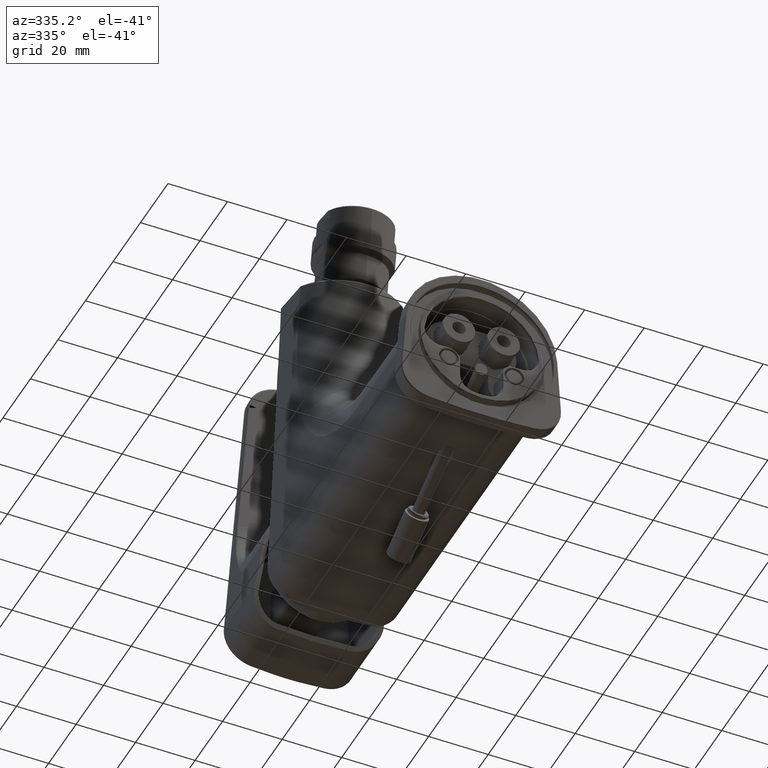
[diagram: clean part render]
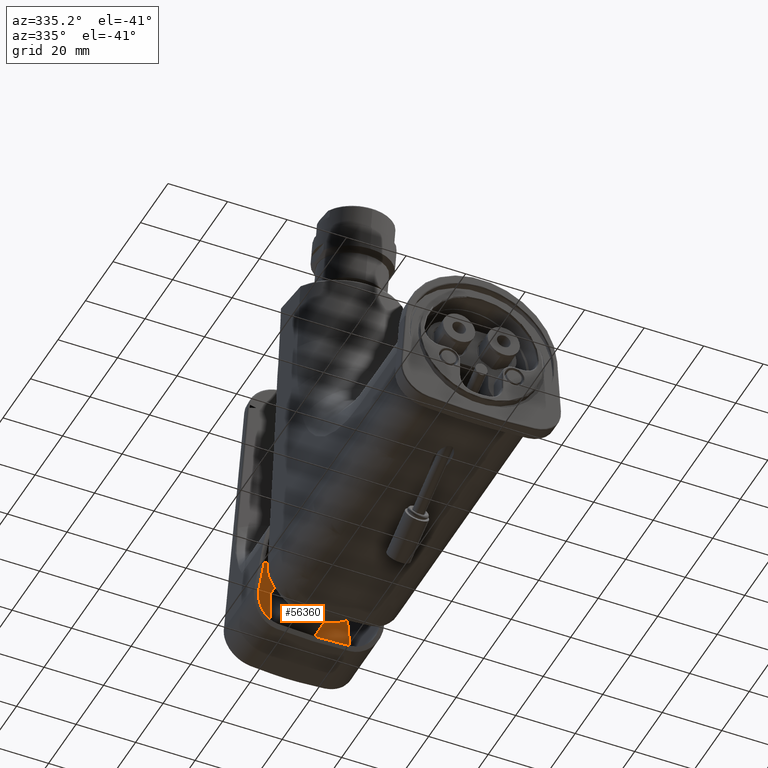
[diagram: same view with one face highlighted and labeled with its STEP entity id]
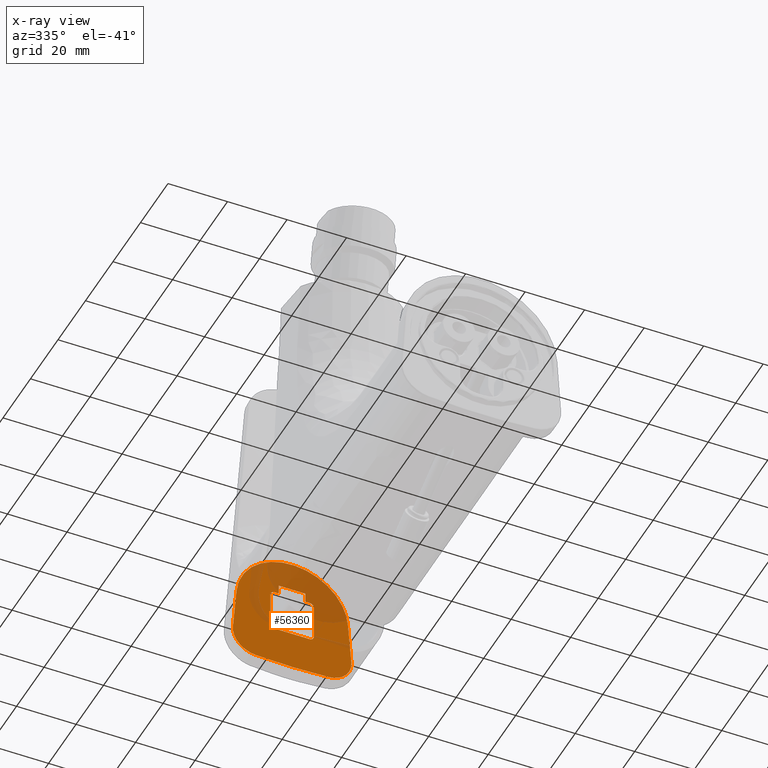
[diagram: x-ray of the same camera — body ghosted, the highlighted face saturated]
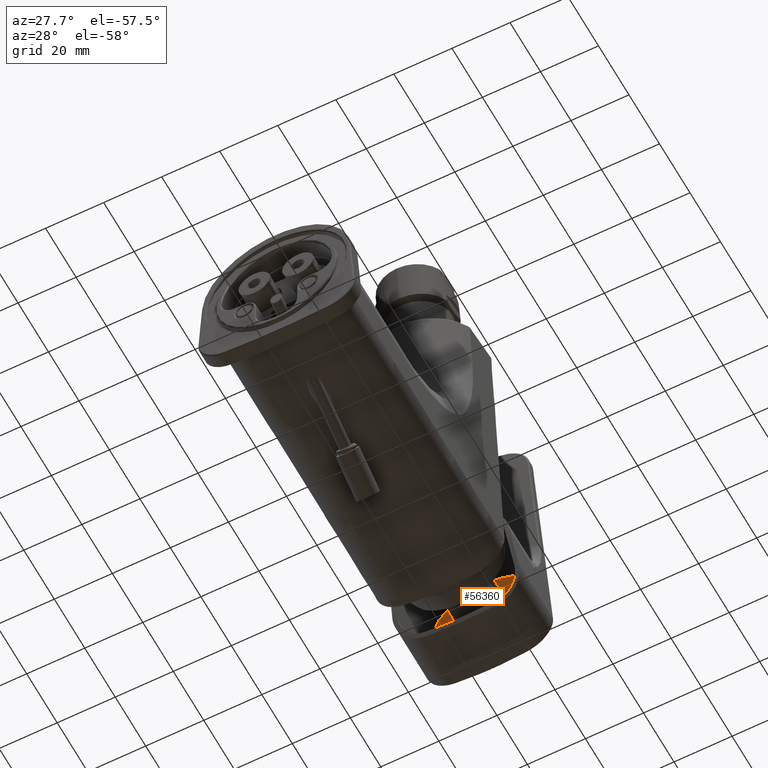
[diagram: same view with one face highlighted and labeled with its STEP entity id]
A machine part, auxiliary view. The second image highlights one B-rep face of the part: STEP entity #56360.
The next image is the same camera in x-ray: the body ghosted, the highlighted face saturated — about 33% of this face is hidden behind the body in this view.
A second angle (auxiliary view) of the same face is appended — the face is thin or edge-on in the first view.
In plain terms, the highlighted face is a freeform B-spline surface patch.
Its self-contained STEP definition (entity closure, byte-faithful):
#11997=CARTESIAN_POINT('',(7.317759736006E0,1.327044430836E2,
-5.817988193271E0));
#11998=CARTESIAN_POINT('',(7.317759736006E0,1.327044430836E2,
-5.855251896638E0));
#11999=CARTESIAN_POINT('',(7.314983783527E0,1.327044430836E2,
-5.929845424255E0));
#12000=CARTESIAN_POINT('',(7.302441616271E0,1.327044430836E2,
-6.041444646624E0));
#12001=CARTESIAN_POINT('',(7.281592593605E0,1.327044430836E2,
-6.151719204480E0));
#12002=CARTESIAN_POINT('',(7.252710595179E0,1.327044430836E2,
-6.259694264647E0));
#12003=CARTESIAN_POINT('',(7.215700362064E0,1.327044430836E2,
-6.365700915223E0));
#12004=CARTESIAN_POINT('',(7.170806833168E0,1.327044430836E2,
-6.468733487140E0));
#12005=CARTESIAN_POINT('',(7.118502879743E0,1.327044430836E2,
-6.567816901581E0));
#12006=CARTESIAN_POINT('',(7.058973571326E0,1.327044430836E2,
-6.662719740014E0));
#12007=CARTESIAN_POINT('',(6.992271951592E0,1.327044430836E2,
-6.753245066016E0));
#12008=CARTESIAN_POINT('',(6.919010493951E0,1.327044430836E2,
-6.838462094267E0));
#12009=CARTESIAN_POINT('',(6.839918697417E0,1.327044430836E2,
-6.917659481042E0));
#12010=CARTESIAN_POINT('',(6.754761987631E0,1.327044430836E2,
-6.991064580032E0));
#12011=CARTESIAN_POINT('',(6.664241713438E0,1.327044430836E2,
-7.057940072532E0));
#12012=CARTESIAN_POINT('',(6.569286934263E0,1.327044430836E2,
-7.117658741967E0));
#12013=CARTESIAN_POINT('',(6.470114399155E0,1.327044430836E2,
-7.170146818511E0));
#12014=CARTESIAN_POINT('',(6.366939844024E0,1.327044430836E2,
-7.215220158236E0));
#12015=CARTESIAN_POINT('',(6.260747323833E0,1.327044430836E2,
-7.252392247994E0));
#12016=CARTESIAN_POINT('',(6.152550475294E0,1.327044430836E2,
-7.281409464545E0));
#12017=CARTESIAN_POINT('',(6.042020407924E0,1.327044430836E2,
-7.302361919290E0));
#12018=CARTESIAN_POINT('',(5.930140144087E0,1.327044430836E2,
-7.314969000405E0));
#12019=CARTESIAN_POINT('',(5.855351264262E0,1.327044430836E2,
-7.317759736005E0));
#12020=CARTESIAN_POINT('',(5.817988193272E0,1.327044430836E2,
-7.317759736005E0));
#12022=CARTESIAN_POINT('',(1.228485097794E1,1.327044430872E2,
-2.033496898433E1));
#12023=CARTESIAN_POINT('',(1.111613795788E1,1.327044430872E2,
-2.040810637435E1));
#12024=CARTESIAN_POINT('',(8.777906817098E0,1.327044430819E2,
-2.053348317039E1));
#12025=CARTESIAN_POINT('',(5.267529474050E0,1.327044430840E2,
-2.065890528162E1));
#12026=CARTESIAN_POINT('',(1.756208102964E0,1.327044430835E2,
-2.072160378772E1));
#12027=CARTESIAN_POINT('',(-1.756208507650E0,1.327044430835E2,
-2.072160378385E1));
#12028=CARTESIAN_POINT('',(-5.267529885292E0,1.327044430839E2,
-2.065890527088E1));
#12029=CARTESIAN_POINT('',(-8.777907257435E0,1.327044430822E2,
-2.053348315078E1));
#12030=CARTESIAN_POINT('',(-1.111613836329E1,1.327044430865E2,
-2.040810635145E1));
#12031=CARTESIAN_POINT('',(-1.228485141687E1,1.327044430865E2,
-2.033496895689E1));
#12033=CARTESIAN_POINT('',(-1.228485141687E1,1.327044430865E2,
-2.033496895689E1));
#12034=CARTESIAN_POINT('',(-1.241996748617E1,1.327044430865E2,
-2.032651347054E1));
#12035=CARTESIAN_POINT('',(-1.268944421023E1,1.327044430822E2,
-2.030288757061E1));
#12036=CARTESIAN_POINT('',(-1.309206374391E1,1.327044430839E2,
-2.024728984117E1));
#12037=CARTESIAN_POINT('',(-1.349077295826E1,1.327044430835E2,
-2.017185956238E1));
#12038=CARTESIAN_POINT('',(-1.388531589713E1,1.327044430836E2,
-2.007667750556E1));
#12039=CARTESIAN_POINT('',(-1.427502159472E1,1.327044430836E2,
-1.996184226249E1));
#12040=CARTESIAN_POINT('',(-1.465795873425E1,1.327044430836E2,
-1.982791849156E1));
#12041=CARTESIAN_POINT('',(-1.503394355519E1,1.327044430836E2,
-1.967499368213E1));
#12042=CARTESIAN_POINT('',(-1.540232207685E1,1.327044430836E2,
-1.950340708982E1));
#12043=CARTESIAN_POINT('',(-1.576139248309E1,1.327044430836E2,
-1.931396848716E1));
#12044=CARTESIAN_POINT('',(-1.611111492814E1,1.327044430836E2,
-1.910656469701E1));
#12045=CARTESIAN_POINT('',(-1.645039840052E1,1.327044430836E2,
-1.888163492110E1));
#12046=CARTESIAN_POINT('',(-1.677758253190E1,1.327044430836E2,
-1.864033545094E1));
#12047=CARTESIAN_POINT('',(-1.709275229954E1,1.327044430836E2,
-1.838274971216E1));
#12048=CARTESIAN_POINT('',(-1.739486342213E1,1.327044430836E2,
-1.810971280458E1));
#12049=CARTESIAN_POINT('',(-1.768258059446E1,1.327044430836E2,
-1.782249319394E1));
#12050=CARTESIAN_POINT('',(-1.795593368035E1,1.327044430836E2,
-1.752093031780E1));
#12051=CARTESIAN_POINT('',(-1.821374124195E1,1.327044430836E2,
-1.720613373561E1));
#12052=CARTESIAN_POINT('',(-1.845498749250E1,1.327044430836E2,
-1.687952284570E1));
#12053=CARTESIAN_POINT('',(-1.867999724696E1,1.327044430836E2,
-1.654101822960E1));
#12054=CARTESIAN_POINT('',(-1.888797234597E1,1.327044430836E2,
-1.619192682323E1));
#12055=CARTESIAN_POINT('',(-1.907821349235E1,1.327044430836E2,
-1.583325419850E1));
#12056=CARTESIAN_POINT('',(-1.925060313900E1,1.327044430836E2,
-1.546484900530E1));
#12057=CARTESIAN_POINT('',(-1.940421997419E1,1.327044430836E2,
-1.508857989879E1));
#12058=CARTESIAN_POINT('',(-1.953868970744E1,1.327044430836E2,
-1.470581991159E1));
#12059=CARTESIAN_POINT('',(-1.965416454442E1,1.327044430836E2,
-1.431660688130E1));
#12060=CARTESIAN_POINT('',(-1.975013249619E1,1.327044430836E2,
-1.392277850657E1));
#12061=CARTESIAN_POINT('',(-1.982637345511E1,1.327044430836E2,
-1.352521121165E1));
#12062=CARTESIAN_POINT('',(-1.988276723935E1,1.327044430836E2,
-1.312414919744E1));
#12063=CARTESIAN_POINT('',(-1.991907860715E1,1.327044430836E2,
-1.272173049782E1));
#12064=CARTESIAN_POINT('',(-1.993549302992E1,1.327044430834E2,
-1.231884279715E1));
#12065=CARTESIAN_POINT('',(-1.993207231373E1,1.327044430843E2,
-1.191584893600E1));
#12066=CARTESIAN_POINT('',(-1.991665714619E1,1.327044430820E2,
-1.164879637627E1));
#12067=CARTESIAN_POINT('',(-1.990567234559E1,1.327044430820E2,
-1.151552978041E1));
#12069=DIRECTION('',(8.085527401588E-2,-3.993511067141E-10,9.967258523104E-1));
#12070=VECTOR('',#12069,1.481412111271E1);
#12071=CARTESIAN_POINT('',(-1.990567234559E1,1.327044430820E2,
-1.151552978041E1));
#12072=LINE('',#12071,#12070);
#12073=CARTESIAN_POINT('',(-1.870787252372E1,1.327044430760E2,
3.250087711880E0));
#12074=CARTESIAN_POINT('',(-1.868728450957E1,1.327044430760E2,
3.507883331596E0));
#12075=CARTESIAN_POINT('',(-1.863547439635E1,1.327044430871E2,
4.022750289872E0));
#12076=CARTESIAN_POINT('',(-1.852553281655E1,1.327044430826E2,
4.794144229371E0));
#12077=CARTESIAN_POINT('',(-1.838361167655E1,1.327044430838E2,
5.561086143660E0));
#12078=CARTESIAN_POINT('',(-1.821021405759E1,1.327044430835E2,
6.320793923506E0));
#12079=CARTESIAN_POINT('',(-1.800530389908E1,1.327044430836E2,
7.073344406874E0));
#12080=CARTESIAN_POINT('',(-1.776956850409E1,1.327044430836E2,
7.816285291799E0));
#12081=CARTESIAN_POINT('',(-1.750395535559E1,1.327044430836E2,
8.547082275480E0));
#12082=CARTESIAN_POINT('',(-1.720951738056E1,1.327044430836E2,
9.263579770217E0));
#12083=CARTESIAN_POINT('',(-1.688658563268E1,1.327044430836E2,
9.965824852348E0));
#12084=CARTESIAN_POINT('',(-1.653682128210E1,1.327044430836E2,
1.065097757369E1));
#12085=CARTESIAN_POINT('',(-1.616203903891E1,1.327044430836E2,
1.131663637646E1));
#12086=CARTESIAN_POINT('',(-1.576356043851E1,1.327044430836E2,
1.196177738605E1));
#12087=CARTESIAN_POINT('',(-1.534182290357E1,1.327044430836E2,
1.258695997252E1));
#12088=CARTESIAN_POINT('',(-1.489816219245E1,1.327044430836E2,
1.319109902238E1));
#12089=CARTESIAN_POINT('',(-1.443400149273E1,1.327044430836E2,
1.377316627953E1));
#12090=CARTESIAN_POINT('',(-1.394917316257E1,1.327044430836E2,
1.433413607759E1));
#12091=CARTESIAN_POINT('',(-1.344448684660E1,1.327044430836E2,
1.487363065940E1));
#12092=CARTESIAN_POINT('',(-1.292110300383E1,1.327044430836E2,
1.539086139583E1));
#12093=CARTESIAN_POINT('',(-1.238035044742E1,1.327044430836E2,
1.588496374823E1));
#12094=CARTESIAN_POINT('',(-1.182154504783E1,1.327044430836E2,
1.635696859424E1));
#12095=CARTESIAN_POINT('',(-1.124583705543E1,1.327044430836E2,
1.680611111062E1));
#12096=CARTESIAN_POINT('',(-1.065429030037E1,1.327044430836E2,
1.723174237559E1));
#12097=CARTESIAN_POINT('',(-1.004779001311E1,1.327044430836E2,
1.763334496065E1));
#12098=CARTESIAN_POINT('',(-9.425581229508E0,1.327044430836E2,
1.801149494757E1));
#12099=CARTESIAN_POINT('',(-8.789163949022E0,1.327044430836E2,
1.836522908657E1));
#12100=CARTESIAN_POINT('',(-8.139842971701E0,1.327044430836E2,
1.869384260852E1));
#12101=CARTESIAN_POINT('',(-7.478086236897E0,1.327044430836E2,
1.899707580370E1));
#12102=CARTESIAN_POINT('',(-6.803675582484E0,1.327044430836E2,
1.927497099072E1));
#12103=CARTESIAN_POINT('',(-6.118316928078E0,1.327044430836E2,
1.952667570510E1));
#12104=CARTESIAN_POINT('',(-5.423748749531E0,1.327044430836E2,
1.975149549268E1));
#12105=CARTESIAN_POINT('',(-4.719843678592E0,1.327044430836E2,
1.994935866258E1));
#12106=CARTESIAN_POINT('',(-4.007340060855E0,1.327044430836E2,
2.011995121793E1));
#12107=CARTESIAN_POINT('',(-3.288030127437E0,1.327044430836E2,
2.026270839747E1));
#12108=CARTESIAN_POINT('',(-2.564001641336E0,1.327044430836E2,
2.037717089574E1));
#12109=CARTESIAN_POINT('',(-1.834731016992E0,1.327044430836E2,
2.046333932509E1));
#12110=CARTESIAN_POINT('',(-1.101832057724E0,1.327044430836E2,
2.052094425585E1));
#12111=CARTESIAN_POINT('',(-3.671643884933E-1,1.327044430836E2,
2.054978405630E1));
#12112=CARTESIAN_POINT('',(3.671790297800E-1,1.327044430836E2,
2.054978381197E1));
#12113=CARTESIAN_POINT('',(1.101844498868E0,1.327044430836E2,2.052094362390E1));
#12114=CARTESIAN_POINT('',(1.834742673696E0,1.327044430836E2,2.046333828577E1));
#12115=CARTESIAN_POINT('',(2.564014066984E0,1.327044430836E2,2.037716918525E1));
#12116=CARTESIAN_POINT('',(3.288040904069E0,1.327044430836E2,2.026270642737E1));
#12117=CARTESIAN_POINT('',(4.007349152429E0,1.327044430836E2,2.011994918941E1));
#12118=CARTESIAN_POINT('',(4.719851694428E0,1.327044430836E2,1.994935656353E1));
#12119=CARTESIAN_POINT('',(5.423757307555E0,1.327044430836E2,1.975149288805E1));
#12120=CARTESIAN_POINT('',(6.118323848205E0,1.327044430836E2,1.952667333393E1));
#12121=CARTESIAN_POINT('',(6.803681737798E0,1.327044430836E2,1.927496865808E1));
#12122=CARTESIAN_POINT('',(7.478091782500E0,1.327044430836E2,1.899707343964E1));
#12123=CARTESIAN_POINT('',(8.139848331625E0,1.327044430836E2,1.869384001664E1));
#12124=CARTESIAN_POINT('',(8.789168621706E0,1.327044430836E2,1.836522655717E1));
#12125=CARTESIAN_POINT('',(9.425585090975E0,1.327044430836E2,1.801149265687E1));
#12126=CARTESIAN_POINT('',(1.004779281670E1,1.327044430836E2,1.763334316912E1));
#12127=CARTESIAN_POINT('',(1.065429269438E1,1.327044430836E2,1.723174075277E1));
#12128=CARTESIAN_POINT('',(1.124584104403E1,1.327044430836E2,1.680610807398E1));
#12129=CARTESIAN_POINT('',(1.182154984197E1,1.327044430836E2,1.635696457623E1));
#12130=CARTESIAN_POINT('',(1.238035521936E1,1.327044430836E2,1.588495950422E1));
#12131=CARTESIAN_POINT('',(1.292110964049E1,1.327044430836E2,1.539085519330E1));
#12132=CARTESIAN_POINT('',(1.344449623592E1,1.327044430836E2,1.487362112163E1));
#12133=CARTESIAN_POINT('',(1.394918427664E1,1.327044430836E2,1.433412376805E1));
#12134=CARTESIAN_POINT('',(1.443401323733E1,1.327044430836E2,1.377315217673E1));
#12135=CARTESIAN_POINT('',(1.489817553361E1,1.327044430836E2,1.319108168739E1));
#12136=CARTESIAN_POINT('',(1.534183734556E1,1.327044430836E2,1.258693952676E1));
#12137=CARTESIAN_POINT('',(1.576357502068E1,1.327044430836E2,1.196175482609E1));
#12138=CARTESIAN_POINT('',(1.616205289975E1,1.327044430836E2,1.131661278715E1));
#12139=CARTESIAN_POINT('',(1.653683224485E1,1.327044430836E2,1.065095711556E1));
#12140=CARTESIAN_POINT('',(1.688659450047E1,1.327044430836E2,9.965806683919E0));
#12141=CARTESIAN_POINT('',(1.720952445429E1,1.327044430836E2,9.263563571249E0));
#12142=CARTESIAN_POINT('',(1.750396079341E1,1.327044430836E2,8.547068015946E0));
#12143=CARTESIAN_POINT('',(1.776957150756E1,1.327044430836E2,7.816276184903E0));
#12144=CARTESIAN_POINT('',(1.800530554381E1,1.327044430836E2,7.073338692793E0));
#12145=CARTESIAN_POINT('',(1.821021495522E1,1.327044430835E2,6.320790217133E0));
#12146=CARTESIAN_POINT('',(1.838361190892E1,1.327044430838E2,5.561084837817E0));
#12147=CARTESIAN_POINT('',(1.852553266951E1,1.327044430828E2,4.794144967684E0));
#12148=CARTESIAN_POINT('',(1.863547423016E1,1.327044430864E2,4.022751671323E0));
#12149=CARTESIAN_POINT('',(1.868728446280E1,1.327044430776E2,3.507883916628E0));
#12150=CARTESIAN_POINT('',(1.870787251571E1,1.327044430776E2,3.250087811541E0));
#12152=DIRECTION('',(8.085527434291E-2,3.501535043515E-10,-9.967258522838E-1));
#12153=VECTOR('',#12152,1.481412495368E1);
#12154=CARTESIAN_POINT('',(1.870787251571E1,1.327044430776E2,3.250087811541E0));
#12155=LINE('',#12154,#12153);
#12156=CARTESIAN_POINT('',(1.990567265299E1,1.327044430828E2,
-1.151553350876E1));
#12157=CARTESIAN_POINT('',(1.991665406200E1,1.327044430828E2,
-1.164875895704E1));
#12158=CARTESIAN_POINT('',(1.993207495880E1,1.327044430840E2,
-1.191569665117E1));
#12159=CARTESIAN_POINT('',(1.993551888029E1,1.327044430835E2,
-1.231842378865E1));
#12160=CARTESIAN_POINT('',(1.991913755536E1,1.327044430836E2,
-1.272093748015E1));
#12161=CARTESIAN_POINT('',(1.988282845806E1,1.327044430836E2,
-1.312322633633E1));
#12162=CARTESIAN_POINT('',(1.982654384343E1,1.327044430836E2,
-1.352377209978E1));
#12163=CARTESIAN_POINT('',(1.975052832034E1,1.327044430836E2,
-1.392087046938E1));
#12164=CARTESIAN_POINT('',(1.965476304927E1,1.327044430836E2,
-1.431462821169E1));
#12165=CARTESIAN_POINT('',(1.953959671852E1,1.327044430836E2,
-1.470328210568E1));
#12166=CARTESIAN_POINT('',(1.940514309297E1,1.327044430836E2,
-1.508612519162E1));
#12167=CARTESIAN_POINT('',(1.925148040452E1,1.327044430836E2,
-1.546260010873E1));
#12168=CARTESIAN_POINT('',(1.907942956269E1,1.327044430836E2,
-1.583061360329E1));
#12169=CARTESIAN_POINT('',(1.888907931770E1,1.327044430836E2,
-1.619003601639E1));
#12170=CARTESIAN_POINT('',(1.868106269904E1,1.327044430836E2,
-1.653961477901E1));
#12171=CARTESIAN_POINT('',(1.845622248345E1,1.327044430836E2,
-1.687790045949E1));
#12172=CARTESIAN_POINT('',(1.821447701787E1,1.327044430836E2,
-1.720505307319E1));
#12173=CARTESIAN_POINT('',(1.795687830716E1,1.327044430836E2,
-1.751964924559E1));
#12174=CARTESIAN_POINT('',(1.768371229303E1,1.327044430836E2,
-1.782128698719E1));
#12175=CARTESIAN_POINT('',(1.739534500433E1,1.327044430836E2,
-1.810935519243E1));
#12176=CARTESIAN_POINT('',(1.709337130139E1,1.327044430836E2,
-1.838233848628E1));
#12177=CARTESIAN_POINT('',(1.677786835823E1,1.327044430836E2,
-1.864020108911E1));
#12178=CARTESIAN_POINT('',(1.645000421376E1,1.327044430836E2,
-1.888183931784E1));
#12179=CARTESIAN_POINT('',(1.611111694695E1,1.327044430836E2,
-1.910642457979E1));
#12180=CARTESIAN_POINT('',(1.576122470751E1,1.327044430836E2,
-1.931403138155E1));
#12181=CARTESIAN_POINT('',(1.540205409610E1,1.327044430836E2,
-1.950362851841E1));
#12182=CARTESIAN_POINT('',(1.503400336881E1,1.327044430836E2,
-1.967504412954E1));
#12183=CARTESIAN_POINT('',(1.465772478614E1,1.327044430836E2,
-1.982801336545E1));
#12184=CARTESIAN_POINT('',(1.427497966557E1,1.327044430836E2,
-1.996180752408E1));
#12185=CARTESIAN_POINT('',(1.388563202831E1,1.327044430836E2,
-2.007652329776E1));
#12186=CARTESIAN_POINT('',(1.349108132566E1,1.327044430835E2,
-2.017178505900E1));
#12187=CARTESIAN_POINT('',(1.309257568187E1,1.327044430840E2,
-2.024724057402E1));
#12188=CARTESIAN_POINT('',(1.268990184292E1,1.327044430819E2,
-2.030285849437E1));
#12189=CARTESIAN_POINT('',(1.242015515786E1,1.327044430872E2,
-2.032650172641E1));
#12190=CARTESIAN_POINT('',(1.228485097794E1,1.327044430872E2,
-2.033496898433E1));
#12192=CARTESIAN_POINT('',(4.499999999999E0,1.327044430836E2,1.05E1));
#12193=CARTESIAN_POINT('',(3.500487692776E0,1.327044430836E2,1.05E1));
#12194=CARTESIAN_POINT('',(1.501111939243E0,1.327044430836E2,1.05E1));
#12195=CARTESIAN_POINT('',(-1.501111964382E0,1.327044430836E2,1.05E1));
#12196=CARTESIAN_POINT('',(-3.500487703551E0,1.327044430836E2,1.05E1));
#12197=CARTESIAN_POINT('',(-4.500000000001E0,1.327044430836E2,1.05E1));
#12199=CARTESIAN_POINT('',(-4.500000000001E0,1.327044430836E2,1.05E1));
#12200=CARTESIAN_POINT('',(-4.500000000001E0,1.327044430836E2,
1.014958433922E1));
#12201=CARTESIAN_POINT('',(-4.500000000001E0,1.327044430836E2,
9.446641957135E0));
#12202=CARTESIAN_POINT('',(-4.500000000001E0,1.327044430836E2,
8.385895202471E0));
#12203=CARTESIAN_POINT('',(-4.500000000001E0,1.327044430836E2,
7.674508578332E0));
#12204=CARTESIAN_POINT('',(-4.500000000001E0,1.327044430836E2,
7.317759736005E0));
#12206=CARTESIAN_POINT('',(7.317759736006E0,1.327044430836E2,
-5.817988193271E0));
#12207=CARTESIAN_POINT('',(7.317759736006E0,1.327044430836E2,
-4.483760195562E0));
#12208=CARTESIAN_POINT('',(7.317759736006E0,1.327044430836E2,
-1.842882422767E0));
#12209=CARTESIAN_POINT('',(7.317759736006E0,1.327044430836E2,2.034317093097E0));
#12210=CARTESIAN_POINT('',(7.317759736005E0,1.327044430836E2,4.565803625704E0));
#12211=CARTESIAN_POINT('',(7.317759736005E0,1.327044430836E2,5.817988193272E0));
#12213=CARTESIAN_POINT('',(4.499999999999E0,1.327044430836E2,7.317759736006E0));
#12214=CARTESIAN_POINT('',(4.499999999999E0,1.327044430836E2,7.674508578333E0));
#12215=CARTESIAN_POINT('',(4.499999999999E0,1.327044430836E2,8.385895202472E0));
#12216=CARTESIAN_POINT('',(4.499999999999E0,1.327044430836E2,9.446641957135E0));
#12217=CARTESIAN_POINT('',(4.499999999999E0,1.327044430836E2,1.014958433922E1));
#12218=CARTESIAN_POINT('',(4.499999999999E0,1.327044430836E2,1.05E1));
#13358=CARTESIAN_POINT('',(-1.990567234559E1,1.327044430820E2,
-1.151552978041E1));
#13377=CARTESIAN_POINT('',(1.990567265299E1,1.327044430828E2,
-1.151553350876E1));
#14493=CARTESIAN_POINT('',(4.499999999999E0,1.327044430836E2,7.317759736006E0));
#14494=CARTESIAN_POINT('',(4.646505101211E0,1.327044430836E2,7.317759736006E0));
#14495=CARTESIAN_POINT('',(4.939473991217E0,1.327044430836E2,7.317759736006E0));
#14496=CARTESIAN_POINT('',(5.378803388975E0,1.327044430836E2,7.317759736006E0));
#14497=CARTESIAN_POINT('',(5.671607029311E0,1.327044430836E2,7.317759736006E0));
#14498=CARTESIAN_POINT('',(5.817988193271E0,1.327044430836E2,7.317759736006E0));
#14508=CARTESIAN_POINT('',(-5.817988193272E0,1.327044430836E2,
7.317759736005E0));
#14509=CARTESIAN_POINT('',(-5.671607029312E0,1.327044430836E2,
7.317759736005E0));
#14510=CARTESIAN_POINT('',(-5.378803388976E0,1.327044430836E2,
7.317759736005E0));
#14511=CARTESIAN_POINT('',(-4.939473991218E0,1.327044430836E2,
7.317759736005E0));
#14512=CARTESIAN_POINT('',(-4.646505101212E0,1.327044430836E2,
7.317759736005E0));
#14513=CARTESIAN_POINT('',(-4.500000000001E0,1.327044430836E2,
7.317759736005E0));
#14523=CARTESIAN_POINT('',(5.817988193271E0,1.327044430836E2,7.317759736006E0));
#14524=CARTESIAN_POINT('',(5.855249084553E0,1.327044430836E2,7.317759736006E0));
#14525=CARTESIAN_POINT('',(5.929837866317E0,1.327044430836E2,7.314984200116E0));
#14526=CARTESIAN_POINT('',(6.041433107632E0,1.327044430836E2,7.302443312801E0));
#14527=CARTESIAN_POINT('',(6.151705600793E0,1.327044430836E2,7.281595521043E0));
#14528=CARTESIAN_POINT('',(6.259667989797E0,1.327044430836E2,7.252718209041E0));
#14529=CARTESIAN_POINT('',(6.365654237027E0,1.327044430836E2,7.215717894302E0));
#14530=CARTESIAN_POINT('',(6.468662638768E0,1.327044430836E2,7.170840297038E0));
#14531=CARTESIAN_POINT('',(6.567724823135E0,1.327044430836E2,7.118554500247E0));
#14532=CARTESIAN_POINT('',(6.662569984945E0,1.327044430836E2,7.059073110527E0));
#14533=CARTESIAN_POINT('',(6.753050009825E0,1.327044430836E2,6.992425317079E0));
#14534=CARTESIAN_POINT('',(6.838235207935E0,1.327044430836E2,6.919218671176E0));
#14535=CARTESIAN_POINT('',(6.917405314150E0,1.327044430836E2,6.840189730358E0));
#14536=CARTESIAN_POINT('',(6.990792532813E0,1.327044430836E2,6.755100373621E0));
#14537=CARTESIAN_POINT('',(7.057676420903E0,1.327044430836E2,6.664627805587E0));
#14538=CARTESIAN_POINT('',(7.117431612329E0,1.327044430836E2,6.569680023694E0));
#14539=CARTESIAN_POINT('',(7.169948933150E0,1.327044430836E2,6.470525417279E0));
#14540=CARTESIAN_POINT('',(7.215070589453E0,1.327044430836E2,6.367324616219E0));
#14541=CARTESIAN_POINT('',(7.252292430702E0,1.327044430836E2,6.261077095348E0));
#14542=CARTESIAN_POINT('',(7.281352830032E0,1.327044430836E2,6.152807340893E0));
#14543=CARTESIAN_POINT('',(7.302337169249E0,1.327044430836E2,6.042199033203E0));
#14544=CARTESIAN_POINT('',(7.314964666776E0,1.327044430836E2,5.930228579219E0));
#14545=CARTESIAN_POINT('',(7.317759736005E0,1.327044430836E2,5.855380823092E0));
#14546=CARTESIAN_POINT('',(7.317759736005E0,1.327044430836E2,5.817988193272E0));
#14556=CARTESIAN_POINT('',(-7.317759736006E0,1.327044430836E2,
5.817988193271E0));
#14557=CARTESIAN_POINT('',(-7.317759736006E0,1.327044430836E2,
5.855380958851E0));
#14558=CARTESIAN_POINT('',(-7.314964614224E0,1.327044430836E2,
5.930229663115E0));
#14559=CARTESIAN_POINT('',(-7.302336796362E0,1.327044430836E2,
6.042202460683E0));
#14560=CARTESIAN_POINT('',(-7.281350657014E0,1.327044430836E2,
6.152817163129E0));
#14561=CARTESIAN_POINT('',(-7.252289783070E0,1.327044430836E2,
6.261085592642E0));
#14562=CARTESIAN_POINT('',(-7.215067168930E0,1.327044430836E2,
6.367333192532E0));
#14563=CARTESIAN_POINT('',(-7.169943208371E0,1.327044430836E2,
6.470538710992E0));
#14564=CARTESIAN_POINT('',(-7.117410486152E0,1.327044430836E2,
6.569716595658E0));
#14565=CARTESIAN_POINT('',(-7.057666671464E0,1.327044430836E2,
6.664641069330E0));
#14566=CARTESIAN_POINT('',(-6.990782511928E0,1.327044430836E2,
6.755113453288E0));
#14567=CARTESIAN_POINT('',(-6.917385302115E0,1.327044430836E2,
6.840211564881E0));
#14568=CARTESIAN_POINT('',(-6.838213586933E0,1.327044430836E2,
6.919238393111E0));
#14569=CARTESIAN_POINT('',(-6.753037114337E0,1.327044430836E2,
6.992435191656E0));
#14570=CARTESIAN_POINT('',(-6.662557286550E0,1.327044430836E2,
7.059082278598E0));
#14571=CARTESIAN_POINT('',(-6.567694415345E0,1.327044430836E2,
7.118571989367E0));
#14572=CARTESIAN_POINT('',(-6.468650498238E0,1.327044430836E2,
7.170845596893E0));
#14573=CARTESIAN_POINT('',(-6.365645582372E0,1.327044430836E2,
7.215721340237E0));
#14574=CARTESIAN_POINT('',(-6.259658541767E0,1.327044430836E2,
7.252721146050E0));
#14575=CARTESIAN_POINT('',(-6.151695488219E0,1.327044430836E2,
7.281597738919E0));
#14576=CARTESIAN_POINT('',(-6.041429296418E0,1.327044430836E2,
7.302443744946E0));
#14577=CARTESIAN_POINT('',(-5.929836611506E0,1.327044430836E2,
7.314984258200E0));
#14578=CARTESIAN_POINT('',(-5.855248884711E0,1.327044430836E2,
7.317759736005E0));
#14579=CARTESIAN_POINT('',(-5.817988193272E0,1.327044430836E2,
7.317759736005E0));
#14585=CARTESIAN_POINT('',(-7.317759736005E0,1.327044430836E2,
-5.817988193272E0));
#14586=CARTESIAN_POINT('',(-7.317759736005E0,1.327044430836E2,
-4.483760180284E0));
#14587=CARTESIAN_POINT('',(-7.317759736006E0,1.327044430836E2,
-1.842882387089E0));
#14588=CARTESIAN_POINT('',(-7.317759736006E0,1.327044430836E2,
2.034317131182E0));
#14589=CARTESIAN_POINT('',(-7.317759736006E0,1.327044430836E2,
4.565803642037E0));
#14590=CARTESIAN_POINT('',(-7.317759736006E0,1.327044430836E2,
5.817988193271E0));
#14596=CARTESIAN_POINT('',(-5.817988193271E0,1.327044430836E2,
-7.317759736006E0));
#14597=CARTESIAN_POINT('',(-5.855351265589E0,1.327044430836E2,
-7.317759736006E0));
#14598=CARTESIAN_POINT('',(-5.930139935163E0,1.327044430836E2,
-7.314969007952E0));
#14599=CARTESIAN_POINT('',(-6.042019535296E0,1.327044430836E2,
-7.302362012917E0));
#14600=CARTESIAN_POINT('',(-6.152547773906E0,1.327044430836E2,
-7.281410048257E0));
#14601=CARTESIAN_POINT('',(-6.260744816148E0,1.327044430836E2,
-7.252393061171E0));
#14602=CARTESIAN_POINT('',(-6.366939211848E0,1.327044430836E2,
-7.215220447047E0));
#14603=CARTESIAN_POINT('',(-6.470114556471E0,1.327044430836E2,
-7.170146766774E0));
#14604=CARTESIAN_POINT('',(-6.569287799791E0,1.327044430836E2,
-7.117658244176E0));
#14605=CARTESIAN_POINT('',(-6.664242031374E0,1.327044430836E2,
-7.057939839601E0));
#14606=CARTESIAN_POINT('',(-6.754762350426E0,1.327044430836E2,
-6.991064303242E0));
#14607=CARTESIAN_POINT('',(-6.839919334402E0,1.327044430836E2,
-6.917658899842E0));
#14608=CARTESIAN_POINT('',(-6.919011079677E0,1.327044430836E2,
-6.838461446981E0));
#14609=CARTESIAN_POINT('',(-6.992272085580E0,1.327044430836E2,
-6.753244876311E0));
#14610=CARTESIAN_POINT('',(-7.058973497524E0,1.327044430836E2,
-6.662719830357E0));
#14611=CARTESIAN_POINT('',(-7.118502614084E0,1.327044430836E2,
-6.567817357006E0));
#14612=CARTESIAN_POINT('',(-7.170806654506E0,1.327044430836E2,
-6.468733856239E0));
#14613=CARTESIAN_POINT('',(-7.215699854930E0,1.327044430836E2,
-6.365702076284E0));
#14614=CARTESIAN_POINT('',(-7.252709480810E0,1.327044430836E2,
-6.259697728588E0));
#14615=CARTESIAN_POINT('',(-7.281591792156E0,1.327044430836E2,
-6.151722916111E0));
#14616=CARTESIAN_POINT('',(-7.302441484061E0,1.327044430836E2,
-6.041445870940E0));
#14617=CARTESIAN_POINT('',(-7.314983771865E0,1.327044430836E2,
-5.929845732693E0));
#14618=CARTESIAN_POINT('',(-7.317759736005E0,1.327044430836E2,
-5.855251904089E0));
#14619=CARTESIAN_POINT('',(-7.317759736005E0,1.327044430836E2,
-5.817988193272E0));
#14625=CARTESIAN_POINT('',(5.817988193272E0,1.327044430836E2,
-7.317759736005E0));
#14626=CARTESIAN_POINT('',(4.525938242394E0,1.327044430836E2,
-7.317759736005E0));
#14627=CARTESIAN_POINT('',(1.941236194501E0,1.327044430836E2,
-7.317759736006E0));
#14628=CARTESIAN_POINT('',(-1.941236181088E0,1.327044430836E2,
-7.317759736006E0));
#14629=CARTESIAN_POINT('',(-4.525938236645E0,1.327044430836E2,
-7.317759736006E0));
#14630=CARTESIAN_POINT('',(-5.817988193271E0,1.327044430836E2,
-7.317759736006E0));
#39814=VERTEX_POINT('',#11997);
#39815=VERTEX_POINT('',#12020);
#39816=VERTEX_POINT('',#14596);
#39817=VERTEX_POINT('',#14619);
#39818=VERTEX_POINT('',#14523);
#39819=VERTEX_POINT('',#14546);
#39820=VERTEX_POINT('',#14556);
#39821=VERTEX_POINT('',#14579);
#39846=VERTEX_POINT('',#12192);
#39847=VERTEX_POINT('',#12197);
#39848=VERTEX_POINT('',#12213);
#39849=VERTEX_POINT('',#12204);
#39856=CARTESIAN_POINT('',(1.228485097794E1,1.327044430872E2,
-2.033496898433E1));
#39858=VERTEX_POINT('',#39856);
#39860=VERTEX_POINT('',#13377);
#39862=VERTEX_POINT('',#13358);
#39864=CARTESIAN_POINT('',(-1.228485141687E1,1.327044430865E2,
-2.033496895689E1));
#39866=VERTEX_POINT('',#39864);
#39868=VERTEX_POINT('',#12073);
#39869=VERTEX_POINT('',#12150);
#56272=CARTESIAN_POINT('',(2.094199659985E1,1.327044430836E2,
-2.044785788526E1));
#56273=CARTESIAN_POINT('',(1.977596942743E1,1.327044430836E2,
-2.056996806756E1));
#56274=CARTESIAN_POINT('',(1.528729176309E1,1.327044430836E2,
-2.100077770223E1));
#56275=CARTESIAN_POINT('',(5.814638360866E0,1.327044430836E2,
-2.159099604045E1));
#56276=CARTESIAN_POINT('',(-5.814638360862E0,1.327044430836E2,
-2.159099604045E1));
#56277=CARTESIAN_POINT('',(-1.528732501843E1,1.327044430836E2,
-2.100077563017E1));
#56278=CARTESIAN_POINT('',(-1.977603593810E1,1.327044430836E2,
-2.056996168406E1));
#56279=CARTESIAN_POINT('',(-2.094209636586E1,1.327044430836E2,
-2.044784743742E1));
#56280=CARTESIAN_POINT('',(2.069992097973E1,1.327044430836E2,
-1.704979843170E1));
#56281=CARTESIAN_POINT('',(1.954737230969E1,1.327044430836E2,
-1.716773035707E1));
#56282=CARTESIAN_POINT('',(1.511058078829E1,1.327044430836E2,
-1.758379893322E1));
#56283=CARTESIAN_POINT('',(5.747424989865E0,1.327044430836E2,
-1.815382170858E1));
#56284=CARTESIAN_POINT('',(-5.747424989862E0,1.327044430836E2,
-1.815382170858E1));
#56285=CARTESIAN_POINT('',(-1.511061365922E1,1.327044430836E2,
-1.758379693206E1));
#56286=CARTESIAN_POINT('',(-1.954743805154E1,1.327044430836E2,
-1.716772419200E1));
#56287=CARTESIAN_POINT('',(-2.070001959252E1,1.327044430836E2,
-1.704978834135E1));
#56288=CARTESIAN_POINT('',(1.992880625470E1,1.327044430836E2,
-6.225520960403E0));
#56289=CARTESIAN_POINT('',(1.881919239835E1,1.327044430836E2,
-6.330143344545E0));
#56290=CARTESIAN_POINT('',(1.454768050664E1,1.327044430836E2,
-6.699255323920E0));
#56291=CARTESIAN_POINT('',(5.533321561884E0,1.327044430836E2,
-7.204946565611E0));
#56292=CARTESIAN_POINT('',(-5.533321561883E0,1.327044430836E2,
-7.204946565612E0));
#56293=CARTESIAN_POINT('',(-1.454771215306E1,1.327044430836E2,
-6.699253548609E0));
#56294=CARTESIAN_POINT('',(-1.881925569119E1,1.327044430836E2,
-6.330137875249E0));
#56295=CARTESIAN_POINT('',(-1.992890119396E1,1.327044430836E2,
-6.225512008828E0));
#56296=CARTESIAN_POINT('',(1.892075026858E1,1.327044430836E2,7.924744034266E0));
#56297=CARTESIAN_POINT('',(1.786726385287E1,1.327044430836E2,7.837520828570E0));
#56298=CARTESIAN_POINT('',(1.381181724260E1,1.327044430836E2,7.529793850583E0));
#56299=CARTESIAN_POINT('',(5.253430340486E0,1.327044430836E2,7.108201362949E0));
#56300=CARTESIAN_POINT('',(-5.253430340487E0,1.327044430836E2,
7.108201362948E0));
#56301=CARTESIAN_POINT('',(-1.381184728826E1,1.327044430836E2,
7.529795330652E0));
#56302=CARTESIAN_POINT('',(-1.786732394418E1,1.327044430836E2,
7.837525388297E0));
#56303=CARTESIAN_POINT('',(-1.892084040554E1,1.327044430836E2,
7.924751497153E0));
#56304=CARTESIAN_POINT('',(1.815476990256E1,1.327044430836E2,1.867694957538E1));
#56305=CARTESIAN_POINT('',(1.714393242513E1,1.327044430836E2,1.860294729119E1));
#56306=CARTESIAN_POINT('',(1.325266495336E1,1.327044430836E2,1.834186425608E1));
#56307=CARTESIAN_POINT('',(5.040752490088E0,1.327044430836E2,1.798417495964E1));
#56308=CARTESIAN_POINT('',(-5.040752490091E0,1.327044430836E2,
1.798417495964E1));
#56309=CARTESIAN_POINT('',(-1.325269378266E1,1.327044430836E2,
1.834186551181E1));
#56310=CARTESIAN_POINT('',(-1.714399008373E1,1.327044430836E2,
1.860295115978E1));
#56311=CARTESIAN_POINT('',(-1.815485639046E1,1.327044430836E2,
1.867695590707E1));
#56312=CARTESIAN_POINT('',(1.791782864147E1,1.327044430836E2,2.200293709874E1));
#56313=CARTESIAN_POINT('',(1.692018379098E1,1.327044430836E2,2.193302445178E1));
#56314=CARTESIAN_POINT('',(1.307970197097E1,1.327044430836E2,2.168636982128E1));
#56315=CARTESIAN_POINT('',(4.974964696670E0,1.327044430836E2,2.134844774523E1));
#56316=CARTESIAN_POINT('',(-4.974964696674E0,1.327044430836E2,
2.134844774523E1));
#56317=CARTESIAN_POINT('',(-1.307973042402E1,1.327044430836E2,
2.168637100761E1));
#56318=CARTESIAN_POINT('',(-1.692024069707E1,1.327044430836E2,
2.193302810657E1));
#56319=CARTESIAN_POINT('',(-1.791791400059E1,1.327044430836E2,
2.200294308052E1));
#56320=B_SPLINE_SURFACE_WITH_KNOTS('',3,3,((#56272,#56273,#56274,#56275,#56276,
#56277,#56278,#56279),(#56280,#56281,#56282,#56283,#56284,#56285,#56286,#56287),
(#56288,#56289,#56290,#56291,#56292,#56293,#56294,#56295),(#56296,#56297,#56298,
#56299,#56300,#56301,#56302,#56303),(#56304,#56305,#56306,#56307,#56308,#56309,
#56310,#56311),(#56312,#56313,#56314,#56315,#56316,#56317,#56318,#56319)),
.UNSPECIFIED.,.F.,.F.,.F.,(4,1,1,4),(4,1,1,1,1,4),(9.427546043480E-3,
1.111111111111E-1,3.333333333333E-1,4.328602172412E-1),(3.312603562510E-2,
1.111111111111E-1,3.333333333333E-1,6.666666666667E-1,8.888888888889E-1,
9.668761885256E-1),.UNSPECIFIED.);
#56322=ORIENTED_EDGE('',*,*,#56321,.T.);
#56324=ORIENTED_EDGE('',*,*,#56323,.T.);
#56326=ORIENTED_EDGE('',*,*,#56325,.T.);
#56328=ORIENTED_EDGE('',*,*,#56327,.T.);
#56330=ORIENTED_EDGE('',*,*,#56329,.T.);
#56332=ORIENTED_EDGE('',*,*,#56331,.T.);
#56333=EDGE_LOOP('',(#56322,#56324,#56326,#56328,#56330,#56332));
#56334=FACE_OUTER_BOUND('',#56333,.F.);
#56336=ORIENTED_EDGE('',*,*,#56335,.T.);
#56338=ORIENTED_EDGE('',*,*,#56337,.T.);
#56340=ORIENTED_EDGE('',*,*,#56339,.F.);
#56342=ORIENTED_EDGE('',*,*,#56341,.F.);
#56344=ORIENTED_EDGE('',*,*,#56343,.F.);
#56346=ORIENTED_EDGE('',*,*,#56345,.F.);
#56348=ORIENTED_EDGE('',*,*,#56347,.F.);
#56349=ORIENTED_EDGE('',*,*,#56255,.F.);
#56351=ORIENTED_EDGE('',*,*,#56350,.T.);
#56353=ORIENTED_EDGE('',*,*,#56352,.F.);
#56355=ORIENTED_EDGE('',*,*,#56354,.F.);
#56357=ORIENTED_EDGE('',*,*,#56356,.T.);
#56358=EDGE_LOOP('',(#56336,#56338,#56340,#56342,#56344,#56346,#56348,#56349,
#56351,#56353,#56355,#56357));
#56359=FACE_BOUND('',#56358,.F.);
#56360=ADVANCED_FACE('',(#56334,#56359),#56320,.T.);
#12021=B_SPLINE_CURVE_WITH_KNOTS('',3,(#11997,#11998,#11999,#12000,#12001,
#12002,#12003,#12004,#12005,#12006,#12007,#12008,#12009,#12010,#12011,#12012,
#12013,#12014,#12015,#12016,#12017,#12018,#12019,#12020),.UNSPECIFIED.,.F.,.F.,(
4,1,1,1,1,1,1,1,1,1,1,1,1,1,1,1,1,1,1,1,1,4),(0.E0,4.761904761905E-2,
9.523809523810E-2,1.428571428571E-1,1.904761904762E-1,2.380952380952E-1,
2.857142857143E-1,3.333333333333E-1,3.809523809524E-1,4.285714285714E-1,
4.761904761905E-1,5.238095238095E-1,5.714285714286E-1,6.190476190476E-1,
6.666666666667E-1,7.142857142857E-1,7.619047619048E-1,8.095238095238E-1,
8.571428571429E-1,9.047619047619E-1,9.523809523810E-1,1.E0),.UNSPECIFIED.);
#12032=B_SPLINE_CURVE_WITH_KNOTS('',3,(#12022,#12023,#12024,#12025,#12026,
#12027,#12028,#12029,#12030,#12031),.UNSPECIFIED.,.F.,.F.,(4,1,1,1,1,1,1,4),(
0.E0,1.428571428571E-1,2.857142857143E-1,4.285714285714E-1,5.714285714286E-1,
7.142857142857E-1,8.571428571429E-1,1.E0),.UNSPECIFIED.);
#12068=B_SPLINE_CURVE_WITH_KNOTS('',3,(#12033,#12034,#12035,#12036,#12037,
#12038,#12039,#12040,#12041,#12042,#12043,#12044,#12045,#12046,#12047,#12048,
#12049,#12050,#12051,#12052,#12053,#12054,#12055,#12056,#12057,#12058,#12059,
#12060,#12061,#12062,#12063,#12064,#12065,#12066,#12067),.UNSPECIFIED.,.F.,.F.,(
4,1,1,1,1,1,1,1,1,1,1,1,1,1,1,1,1,1,1,1,1,1,1,1,1,1,1,1,1,1,1,1,4),(0.E0,
3.125E-2,6.25E-2,9.375E-2,1.25E-1,1.5625E-1,1.875E-1,2.1875E-1,2.5E-1,2.8125E-1,
3.125E-1,3.4375E-1,3.75E-1,4.0625E-1,4.375E-1,4.6875E-1,5.E-1,5.3125E-1,
5.625E-1,5.9375E-1,6.25E-1,6.5625E-1,6.875E-1,7.1875E-1,7.5E-1,7.8125E-1,
8.125E-1,8.4375E-1,8.75E-1,9.0625E-1,9.375E-1,9.6875E-1,1.E0),.UNSPECIFIED.);
#12151=B_SPLINE_CURVE_WITH_KNOTS('',3,(#12073,#12074,#12075,#12076,#12077,
#12078,#12079,#12080,#12081,#12082,#12083,#12084,#12085,#12086,#12087,#12088,
#12089,#12090,#12091,#12092,#12093,#12094,#12095,#12096,#12097,#12098,#12099,
#12100,#12101,#12102,#12103,#12104,#12105,#12106,#12107,#12108,#12109,#12110,
#12111,#12112,#12113,#12114,#12115,#12116,#12117,#12118,#12119,#12120,#12121,
#12122,#12123,#12124,#12125,#12126,#12127,#12128,#12129,#12130,#12131,#12132,
#12133,#12134,#12135,#12136,#12137,#12138,#12139,#12140,#12141,#12142,#12143,
#12144,#12145,#12146,#12147,#12148,#12149,#12150),.UNSPECIFIED.,.F.,.F.,(4,1,1,
1,1,1,1,1,1,1,1,1,1,1,1,1,1,1,1,1,1,1,1,1,1,1,1,1,1,1,1,1,1,1,1,1,1,1,1,1,1,1,1,
1,1,1,1,1,1,1,1,1,1,1,1,1,1,1,1,1,1,1,1,1,1,1,1,1,1,1,1,1,1,1,1,4),(0.E0,
1.333333333333E-2,2.666666666667E-2,4.E-2,5.333333333333E-2,6.666666666667E-2,
8.E-2,9.333333333333E-2,1.066666666667E-1,1.2E-1,1.333333333333E-1,
1.466666666667E-1,1.6E-1,1.733333333333E-1,1.866666666667E-1,2.E-1,
2.133333333333E-1,2.266666666667E-1,2.4E-1,2.533333333333E-1,2.666666666667E-1,
2.8E-1,2.933333333333E-1,3.066666666667E-1,3.2E-1,3.333333333333E-1,
3.466666666667E-1,3.6E-1,3.733333333333E-1,3.866666666667E-1,4.E-1,
4.133333333333E-1,4.266666666667E-1,4.4E-1,4.533333333333E-1,4.666666666667E-1,
4.8E-1,4.933333333333E-1,5.066666666667E-1,5.2E-1,5.333333333333E-1,
5.466666666667E-1,5.6E-1,5.733333333333E-1,5.866666666667E-1,6.E-1,
6.133333333333E-1,6.266666666667E-1,6.4E-1,6.533333333333E-1,6.666666666667E-1,
6.8E-1,6.933333333333E-1,7.066666666667E-1,7.2E-1,7.333333333333E-1,
7.466666666667E-1,7.6E-1,7.733333333333E-1,7.866666666667E-1,8.E-1,
8.133333333333E-1,8.266666666667E-1,8.4E-1,8.533333333333E-1,8.666666666667E-1,
8.8E-1,8.933333333333E-1,9.066666666667E-1,9.2E-1,9.333333333333E-1,
9.466666666667E-1,9.6E-1,9.733333333333E-1,9.866666666667E-1,1.E0),
.UNSPECIFIED.);
#12191=B_SPLINE_CURVE_WITH_KNOTS('',3,(#12156,#12157,#12158,#12159,#12160,
#12161,#12162,#12163,#12164,#12165,#12166,#12167,#12168,#12169,#12170,#12171,
#12172,#12173,#12174,#12175,#12176,#12177,#12178,#12179,#12180,#12181,#12182,
#12183,#12184,#12185,#12186,#12187,#12188,#12189,#12190),.UNSPECIFIED.,.F.,.F.,(
4,1,1,1,1,1,1,1,1,1,1,1,1,1,1,1,1,1,1,1,1,1,1,1,1,1,1,1,1,1,1,1,4),(0.E0,
3.125E-2,6.25E-2,9.375E-2,1.25E-1,1.5625E-1,1.875E-1,2.1875E-1,2.5E-1,2.8125E-1,
3.125E-1,3.4375E-1,3.75E-1,4.0625E-1,4.375E-1,4.6875E-1,5.E-1,5.3125E-1,
5.625E-1,5.9375E-1,6.25E-1,6.5625E-1,6.875E-1,7.1875E-1,7.5E-1,7.8125E-1,
8.125E-1,8.4375E-1,8.75E-1,9.0625E-1,9.375E-1,9.6875E-1,1.E0),.UNSPECIFIED.);
#12198=B_SPLINE_CURVE_WITH_KNOTS('',3,(#12192,#12193,#12194,#12195,#12196,
#12197),.UNSPECIFIED.,.F.,.F.,(4,1,1,4),(0.E0,3.333333333333E-1,
6.666666666667E-1,1.E0),.UNSPECIFIED.);
#12205=B_SPLINE_CURVE_WITH_KNOTS('',3,(#12199,#12200,#12201,#12202,#12203,
#12204),.UNSPECIFIED.,.F.,.F.,(4,1,1,4),(0.E0,3.333333333333E-1,
6.666666666667E-1,1.E0),.UNSPECIFIED.);
#12212=B_SPLINE_CURVE_WITH_KNOTS('',3,(#12206,#12207,#12208,#12209,#12210,
#12211),.UNSPECIFIED.,.F.,.F.,(4,1,1,4),(0.E0,3.333333333333E-1,
6.666666666667E-1,1.E0),.UNSPECIFIED.);
#12219=B_SPLINE_CURVE_WITH_KNOTS('',3,(#12213,#12214,#12215,#12216,#12217,
#12218),.UNSPECIFIED.,.F.,.F.,(4,1,1,4),(0.E0,3.333333333333E-1,
6.666666666667E-1,1.E0),.UNSPECIFIED.);
#14499=B_SPLINE_CURVE_WITH_KNOTS('',3,(#14493,#14494,#14495,#14496,#14497,
#14498),.UNSPECIFIED.,.F.,.F.,(4,1,1,4),(0.E0,3.333333333333E-1,
6.666666666667E-1,1.E0),.UNSPECIFIED.);
#14514=B_SPLINE_CURVE_WITH_KNOTS('',3,(#14508,#14509,#14510,#14511,#14512,
#14513),.UNSPECIFIED.,.F.,.F.,(4,1,1,4),(0.E0,3.333333333333E-1,
6.666666666667E-1,1.E0),.UNSPECIFIED.);
#14547=B_SPLINE_CURVE_WITH_KNOTS('',3,(#14523,#14524,#14525,#14526,#14527,
#14528,#14529,#14530,#14531,#14532,#14533,#14534,#14535,#14536,#14537,#14538,
#14539,#14540,#14541,#14542,#14543,#14544,#14545,#14546),.UNSPECIFIED.,.F.,.F.,(
4,1,1,1,1,1,1,1,1,1,1,1,1,1,1,1,1,1,1,1,1,4),(0.E0,4.761904761905E-2,
9.523809523810E-2,1.428571428571E-1,1.904761904762E-1,2.380952380952E-1,
2.857142857143E-1,3.333333333333E-1,3.809523809524E-1,4.285714285714E-1,
4.761904761905E-1,5.238095238095E-1,5.714285714286E-1,6.190476190476E-1,
6.666666666667E-1,7.142857142857E-1,7.619047619048E-1,8.095238095238E-1,
8.571428571429E-1,9.047619047619E-1,9.523809523810E-1,1.E0),.UNSPECIFIED.);
#14580=B_SPLINE_CURVE_WITH_KNOTS('',3,(#14556,#14557,#14558,#14559,#14560,
#14561,#14562,#14563,#14564,#14565,#14566,#14567,#14568,#14569,#14570,#14571,
#14572,#14573,#14574,#14575,#14576,#14577,#14578,#14579),.UNSPECIFIED.,.F.,.F.,(
4,1,1,1,1,1,1,1,1,1,1,1,1,1,1,1,1,1,1,1,1,4),(0.E0,4.761904761905E-2,
9.523809523810E-2,1.428571428571E-1,1.904761904762E-1,2.380952380952E-1,
2.857142857143E-1,3.333333333333E-1,3.809523809524E-1,4.285714285714E-1,
4.761904761905E-1,5.238095238095E-1,5.714285714286E-1,6.190476190476E-1,
6.666666666667E-1,7.142857142857E-1,7.619047619048E-1,8.095238095238E-1,
8.571428571429E-1,9.047619047619E-1,9.523809523810E-1,1.E0),.UNSPECIFIED.);
#14591=B_SPLINE_CURVE_WITH_KNOTS('',3,(#14585,#14586,#14587,#14588,#14589,
#14590),.UNSPECIFIED.,.F.,.F.,(4,1,1,4),(0.E0,3.333333333333E-1,
6.666666666667E-1,1.E0),.UNSPECIFIED.);
#14620=B_SPLINE_CURVE_WITH_KNOTS('',3,(#14596,#14597,#14598,#14599,#14600,
#14601,#14602,#14603,#14604,#14605,#14606,#14607,#14608,#14609,#14610,#14611,
#14612,#14613,#14614,#14615,#14616,#14617,#14618,#14619),.UNSPECIFIED.,.F.,.F.,(
4,1,1,1,1,1,1,1,1,1,1,1,1,1,1,1,1,1,1,1,1,4),(0.E0,4.761904761905E-2,
9.523809523810E-2,1.428571428571E-1,1.904761904762E-1,2.380952380952E-1,
2.857142857143E-1,3.333333333333E-1,3.809523809524E-1,4.285714285714E-1,
4.761904761905E-1,5.238095238095E-1,5.714285714286E-1,6.190476190476E-1,
6.666666666667E-1,7.142857142857E-1,7.619047619048E-1,8.095238095238E-1,
8.571428571429E-1,9.047619047619E-1,9.523809523810E-1,1.E0),.UNSPECIFIED.);
#14631=B_SPLINE_CURVE_WITH_KNOTS('',3,(#14625,#14626,#14627,#14628,#14629,
#14630),.UNSPECIFIED.,.F.,.F.,(4,1,1,4),(0.E0,3.333333333333E-1,
6.666666666667E-1,1.E0),.UNSPECIFIED.);
#56255=EDGE_CURVE('',#39814,#39815,#12021,.T.);
#56321=EDGE_CURVE('',#39858,#39866,#12032,.T.);
#56323=EDGE_CURVE('',#39866,#39862,#12068,.T.);
#56325=EDGE_CURVE('',#39862,#39868,#12072,.T.);
#56327=EDGE_CURVE('',#39868,#39869,#12151,.T.);
#56329=EDGE_CURVE('',#39869,#39860,#12155,.T.);
#56331=EDGE_CURVE('',#39860,#39858,#12191,.T.);
#56335=EDGE_CURVE('',#39846,#39847,#12198,.T.);
#56337=EDGE_CURVE('',#39847,#39849,#12205,.T.);
#56339=EDGE_CURVE('',#39821,#39849,#14514,.T.);
#56341=EDGE_CURVE('',#39820,#39821,#14580,.T.);
#56343=EDGE_CURVE('',#39817,#39820,#14591,.T.);
#56345=EDGE_CURVE('',#39816,#39817,#14620,.T.);
#56347=EDGE_CURVE('',#39815,#39816,#14631,.T.);
#56350=EDGE_CURVE('',#39814,#39819,#12212,.T.);
#56352=EDGE_CURVE('',#39818,#39819,#14547,.T.);
#56354=EDGE_CURVE('',#39848,#39818,#14499,.T.);
#56356=EDGE_CURVE('',#39848,#39846,#12219,.T.);